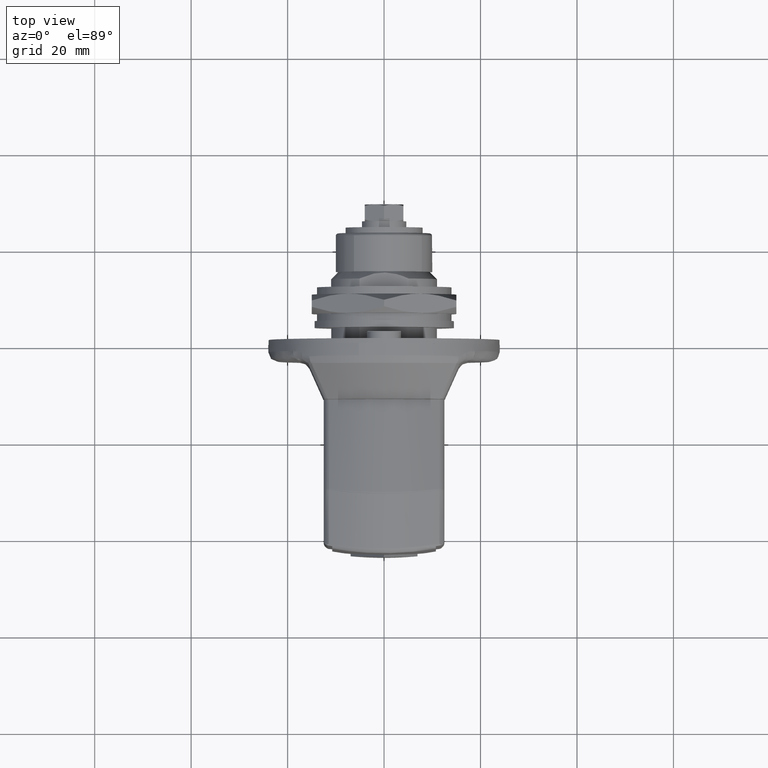
[diagram: clean part render]
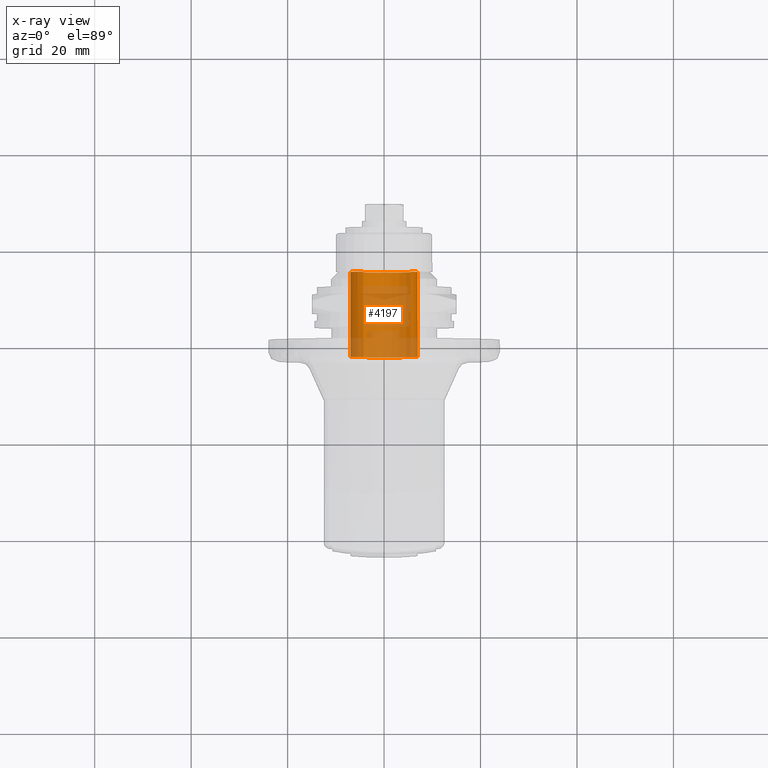
[diagram: x-ray — body ghosted, one internal face saturated and labeled with its STEP entity id]
A machine part, top view, then the same camera in x-ray: the body is ghosted and one INTERNAL B-rep face — a face not visible from any outside direction — is saturated and labeled: STEP entity #4197.
In plain terms, the highlighted face is a freeform B-spline surface patch.
Its self-contained STEP definition (entity closure, byte-faithful):
#4063=CARTESIAN_POINT('',(14.540000004396850,4.357602456463335,5.478257097966896));
#4064=CARTESIAN_POINT('',(14.540000004396859,9.835859554430231,1.120654641503561));
#4065=CARTESIAN_POINT('',(14.540000004396850,5.478257097966896,-4.357602456463335));
#4066=CARTESIAN_POINT('',(14.540000004396859,1.120654641503561,-9.835859554430231));
#4067=CARTESIAN_POINT('',(14.540000004396850,-4.357602456463335,-5.478257097966896));
#4068=CARTESIAN_POINT('',(14.540000004396859,-9.835859554430231,-1.120654641503561));
#4069=CARTESIAN_POINT('',(14.540000004396861,-5.478257097966896,4.357602456463335));
#4070=CARTESIAN_POINT('',(-3.951000000109927,4.357602456463335,5.478257097966896));
#4071=CARTESIAN_POINT('',(-3.951000000109928,9.835859554430231,1.120654641503561));
#4072=CARTESIAN_POINT('',(-3.951000000109928,5.478257097966896,-4.357602456463335));
#4073=CARTESIAN_POINT('',(-3.951000000109928,1.120654641503561,-9.835859554430231));
#4074=CARTESIAN_POINT('',(-3.951000000109927,-4.357602456463335,-5.478257097966896));
#4075=CARTESIAN_POINT('',(-3.951000000109926,-9.835859554430231,-1.120654641503561));
#4076=CARTESIAN_POINT('',(-3.951000000109926,-5.478257097966896,4.357602456463335));
#4084=(BOUNDED_SURFACE()B_SPLINE_SURFACE(2,1,((#4063,#4070),(#4064,#4071),(#4065,#4072),(#4066,#4073),(#4067,#4074),(#4068,#4075),(#4069,#4076)),.UNSPECIFIED.,.F.,.F.,.U.)B_SPLINE_SURFACE_WITH_KNOTS((3,2,2,3),(2,2),(0.0,11.597979746446660,23.195959492893319,34.793939239339977),(0.0,18.491000004506780),.UNSPECIFIED.)GEOMETRIC_REPRESENTATION_ITEM()RATIONAL_B_SPLINE_SURFACE(((1.0,1.0),(0.707106781186548,0.707106781186548),(1.0,1.0),(0.707106781186548,0.707106781186548),(1.0,1.0),(0.707106781186548,0.707106781186548),(1.0,1.0)))REPRESENTATION_ITEM('')SURFACE());
#4085=CARTESIAN_POINT('',(14.100000000932530,4.357602456465251,5.478257097965438));
#4086=VERTEX_POINT('',#4085);
#4087=CARTESIAN_POINT('',(14.100000004289610,6.999999999999998,5.986765E-017));
#4088=VERTEX_POINT('',#4087);
#4089=CARTESIAN_POINT('',(14.100000000932527,4.357602456465251,5.478257097965440));
#4090=CARTESIAN_POINT('',(14.100000002220554,7.000000000000289,3.376399185720055));
#4091=CARTESIAN_POINT('',(14.100000004289601,6.999999999999996,5.986765E-017));
#4099=(BOUNDED_CURVE()B_SPLINE_CURVE(2,(#4089,#4090,#4091),.UNSPECIFIED.,.F.,.U.)B_SPLINE_CURVE_WITH_KNOTS((3,3),(0.107863877391551,0.250000000000015),.UNSPECIFIED.)CURVE()GEOMETRIC_REPRESENTATION_ITEM()RATIONAL_B_SPLINE_CURVE((0.856305618644036,0.833477174158189,1.000000000000036))REPRESENTATION_ITEM(''));
#4100=EDGE_CURVE('',#4086,#4088,#4099,.T.);
#4101=ORIENTED_EDGE('',*,*,#4100,.T.);
#4102=CARTESIAN_POINT('',(14.100000000000000,0.0,-7.0));
#4103=VERTEX_POINT('',#4102);
#4104=CARTESIAN_POINT('',(14.100000004289607,6.999999999999998,5.986765E-017));
#4105=CARTESIAN_POINT('',(14.100000000000001,6.999999999999402,-6.999999999999999));
#4106=CARTESIAN_POINT('',(14.100000000000000,0.0,-7.0));
#4114=(BOUNDED_CURVE()B_SPLINE_CURVE(2,(#4104,#4105,#4106),.UNSPECIFIED.,.F.,.U.)B_SPLINE_CURVE_WITH_KNOTS((3,3),(0.250000000000015,0.500000000000000),.UNSPECIFIED.)CURVE()GEOMETRIC_REPRESENTATION_ITEM()RATIONAL_B_SPLINE_CURVE((0.999999999999965,0.707106781186565,1.0))REPRESENTATION_ITEM(''));
#4115=EDGE_CURVE('',#4088,#4103,#4114,.T.);
#4116=ORIENTED_EDGE('',*,*,#4115,.T.);
#4117=CARTESIAN_POINT('',(14.100000004289610,-6.953181471495570,-0.808249605289517));
#4118=VERTEX_POINT('',#4117);
#4119=CARTESIAN_POINT('',(14.100000000000000,0.0,-7.0));
#4120=CARTESIAN_POINT('',(14.100000000000003,-6.233441905788573,-7.0));
#4121=CARTESIAN_POINT('',(14.100000004289614,-6.953181471495570,-0.808249605289517));
#4129=(BOUNDED_CURVE()B_SPLINE_CURVE(2,(#4119,#4120,#4121),.UNSPECIFIED.,.F.,.U.)B_SPLINE_CURVE_WITH_KNOTS((3,3),(0.500000000000000,0.729999999999999),.UNSPECIFIED.)CURVE()GEOMETRIC_REPRESENTATION_ITEM()RATIONAL_B_SPLINE_CURVE((1.0,0.730538238691625,0.956886118190658))REPRESENTATION_ITEM(''));
#4130=EDGE_CURVE('',#4103,#4118,#4129,.T.);
#4131=ORIENTED_EDGE('',*,*,#4130,.T.);
#4132=CARTESIAN_POINT('',(14.100000000000000,-5.478257097965397,4.357602456465222));
#4133=VERTEX_POINT('',#4132);
#4134=CARTESIAN_POINT('',(14.100000004289610,-6.953181471495570,-0.808249605289517));
#4135=CARTESIAN_POINT('',(14.100000000000005,-7.0,-0.405480803685139));
#4136=CARTESIAN_POINT('',(14.100000000000000,-7.0,0.0));
#4137=CARTESIAN_POINT('',(14.099999999999996,-7.0,2.444509433953483));
#4138=CARTESIAN_POINT('',(14.100000000000001,-5.478257097965397,4.357602456465222));
#4146=(BOUNDED_CURVE()B_SPLINE_CURVE(2,(#4134,#4135,#4136,#4137,#4138),.UNSPECIFIED.,.F.,.U.)B_SPLINE_CURVE_WITH_KNOTS((3,2,3),(0.730000000000000,0.750000000000000,0.857863877391550),.UNSPECIFIED.)CURVE()GEOMETRIC_REPRESENTATION_ITEM()RATIONAL_B_SPLINE_CURVE((0.956886118190660,0.976568542494924,1.0,0.873629607028358,0.856305618644037))REPRESENTATION_ITEM(''));
#4147=EDGE_CURVE('',#4118,#4133,#4146,.T.);
#4148=ORIENTED_EDGE('',*,*,#4147,.T.);
#4149=CARTESIAN_POINT('',(-3.500000000000002,-5.478263302634437,4.357594656104383));
#4150=VERTEX_POINT('',#4149);
#4151=CARTESIAN_POINT('',(14.100000000000000,-5.478257097965397,4.357602456465222));
#4152=CARTESIAN_POINT('',(-3.500000000000002,-5.478263302634437,4.357594656104383));
#4153=QUASI_UNIFORM_CURVE('',1,(#4151,#4152),.UNSPECIFIED.,.F.,.U.);
#4154=EDGE_CURVE('',#4133,#4150,#4153,.T.);
#4155=ORIENTED_EDGE('',*,*,#4154,.T.);
#4156=CARTESIAN_POINT('',(-3.500000000000000,0.0,-7.0));
#4157=VERTEX_POINT('',#4156);
#4158=CARTESIAN_POINT('',(-3.500000000000000,0.0,-7.0));
#4159=CARTESIAN_POINT('',(-3.500000000000000,-6.999999999999999,-6.999999999999999));
#4160=CARTESIAN_POINT('',(-3.500000000000000,-7.0,0.0));
#4161=CARTESIAN_POINT('',(-3.500000000000000,-6.999999999999999,2.444503842638754));
#4162=CARTESIAN_POINT('',(-3.500000000000002,-5.478263302634438,4.357594656104383));
#4170=(BOUNDED_CURVE()B_SPLINE_CURVE(2,(#4158,#4159,#4160,#4161,#4162),.UNSPECIFIED.,.F.,.U.)B_SPLINE_CURVE_WITH_KNOTS((3,2,3),(0.500000000000000,0.750000000000000,0.857863661852622),.UNSPECIFIED.)CURVE()GEOMETRIC_REPRESENTATION_ITEM()RATIONAL_B_SPLINE_CURVE((1.0,0.707106781186547,1.0,0.873629859547919,0.856305687879771))REPRESENTATION_ITEM(''));
#4171=EDGE_CURVE('',#4157,#4150,#4170,.T.);
#4172=ORIENTED_EDGE('',*,*,#4171,.F.);
#4173=CARTESIAN_POINT('',(-3.500000000000000,4.357594764996271,5.478263216018419));
#4174=VERTEX_POINT('',#4173);
#4175=CARTESIAN_POINT('',(-3.500000000000001,4.357594764996271,5.478263216018420));
#4176=CARTESIAN_POINT('',(-3.500000000000000,6.999999999999999,3.376405242977941));
#4177=CARTESIAN_POINT('',(-3.500000000000000,7.0,0.0));
#4178=CARTESIAN_POINT('',(-3.500000000000000,6.999999999999999,-6.999999999999999));
#4179=CARTESIAN_POINT('',(-3.500000000000000,0.0,-7.0));
#4187=(BOUNDED_CURVE()B_SPLINE_CURVE(2,(#4175,#4176,#4177,#4178,#4179),.UNSPECIFIED.,.F.,.U.)B_SPLINE_CURVE_WITH_KNOTS((3,2,3),(0.107863664861510,0.250000000000000,0.500000000000000),.UNSPECIFIED.)CURVE()GEOMETRIC_REPRESENTATION_ITEM()RATIONAL_B_SPLINE_CURVE((0.856305686913245,0.833476925163759,1.0,0.707106781186547,1.0))REPRESENTATION_ITEM(''));
#4188=EDGE_CURVE('',#4174,#4157,#4187,.T.);
#4189=ORIENTED_EDGE('',*,*,#4188,.F.);
#4190=CARTESIAN_POINT('',(14.100000000932530,4.357602456465251,5.478257097965438));
#4191=CARTESIAN_POINT('',(-3.500000000000000,4.357594764996271,5.478263216018419));
#4192=QUASI_UNIFORM_CURVE('',1,(#4190,#4191),.UNSPECIFIED.,.F.,.U.);
#4193=EDGE_CURVE('',#4086,#4174,#4192,.T.);
#4194=ORIENTED_EDGE('',*,*,#4193,.F.);
#4195=EDGE_LOOP('',(#4101,#4116,#4131,#4148,#4155,#4172,#4189,#4194));
#4196=FACE_OUTER_BOUND('',#4195,.T.);
#4197=ADVANCED_FACE('',(#4196),#4084,.T.);